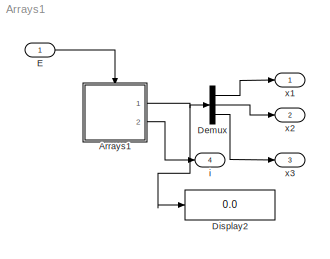
MODEL Arrays1
KIND model
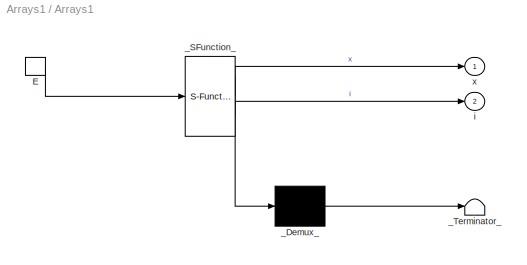
BLOCK [SubSystem] Arrays1
  ErrorFcn = Stateflow.Translate.translate
  PermitHierarchicalResolution = ExplicitOnly
  Ports = [0, 2, 0, 1]
  RequestExecContextInheritance = off
  SFBlockType = Chart
  SID = 1
  TreatAsAtomicUnit = on
  Variant = off
BLOCK [TriggerPort] Arrays1/E
  Ports = [0, 1]
  SID = 1::1
  ShowOutputPort = on
  VariantControl = (inherit)
BLOCK [Demux] Arrays1/_Demux_
  Outputs = 1
  Ports = [1, 1]
  SID = 1::17
BLOCK [S-Function] Arrays1/_SFunction_
  EnableBusSupport = on
  FunctionName = sf_sfun
  PortCounts = [1 3]
  Ports = [1, 3]
  SFcnIsStateOwnerBlock = off
  SFunctionDeploymentMode = off
  SID = 1::16
  Tag = Stateflow S-Function Arrays1 1
BLOCK [Terminator] Arrays1/_Terminator_
  SID = 1::18
BLOCK [Outport] Arrays1/i
  IconDisplay = Port number
  Port = 2
  SID = 1::19
BLOCK [Outport] Arrays1/x
  IconDisplay = Port number
  SID = 1::5
BLOCK [Demux] Demux
  Outputs = 3
  Ports = [1, 3]
  SID = 2
BLOCK [Display] Display2
  Decimation = 1
  Ports = [1]
  SID = 5
BLOCK [Inport] E
  IconDisplay = Port number
  SID = 10
BLOCK [Outport] i
  IconDisplay = Port number
  Port = 4
  SID = 12
BLOCK [Outport] x1
  IconDisplay = Port number
  SID = 7
BLOCK [Outport] x2
  IconDisplay = Port number
  Port = 2
  SID = 8
BLOCK [Outport] x3
  IconDisplay = Port number
  Port = 3
  SID = 9
LINE Arrays1/E:1 -> Arrays1/_SFunction_:1
LINE Arrays1/_Demux_:1 -> Arrays1/_Terminator_:1
LINE Arrays1/_SFunction_:1 -> Arrays1/_Demux_:1
LINE Arrays1/_SFunction_:2 -> Arrays1/x:1
LINE Arrays1/_SFunction_:3 -> Arrays1/i:1
NET Arrays1:1 -> Demux:1, Display2:1
LINE Arrays1:2 -> i:1
LINE Demux:1 -> x1:1
LINE Demux:2 -> x2:1
LINE Demux:3 -> x3:1
LINE E:1 -> Arrays1:trigger
note: NET lines group one-source signal fan-out (src -> all destinations, sorted); 1:1 wires keep LINE
CHART Arrays1 states=3 transitions=4
  STATE_LABEL 'A/\\nen:\\ni = 1;\\nx = x([3, 1, 2]) + 1;'
  STATE_LABEL 'B/\\nen:\\ni = 2;\\nx([i, 1]) = x([2, 3]) + 1;'
  STATE_LABEL 'C/\\nen:\\ni = 3;\\nx(3) = x(3) + 1;'
